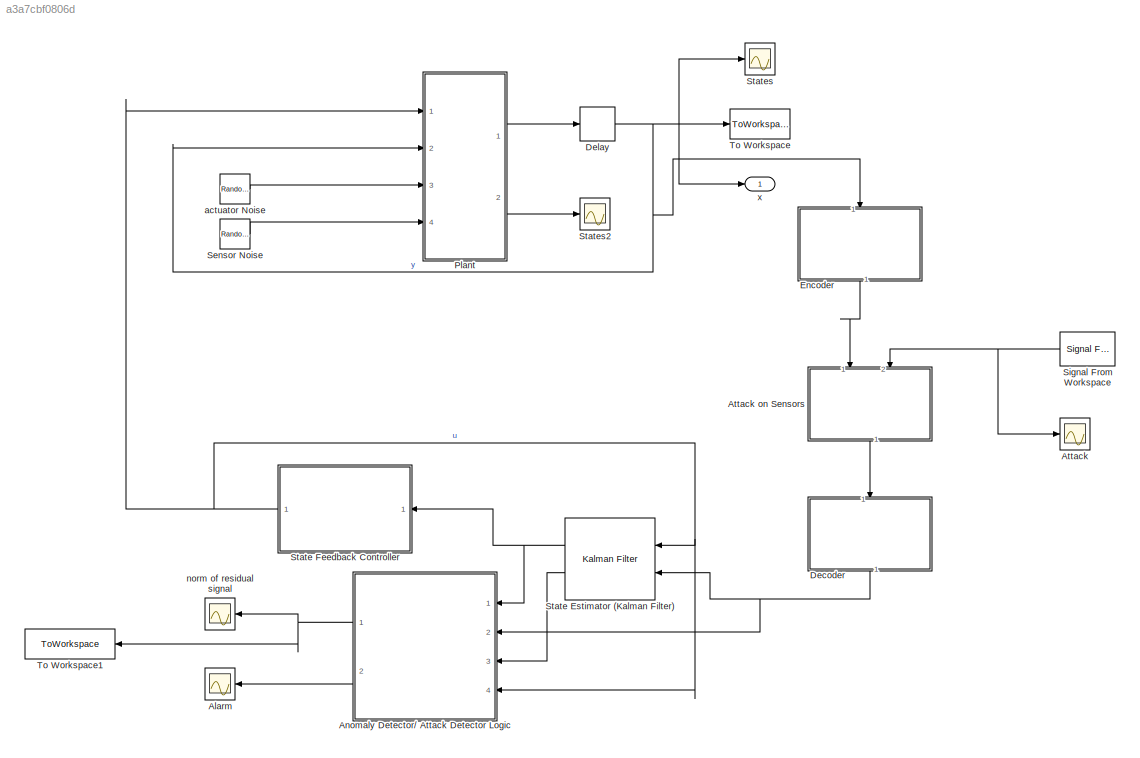
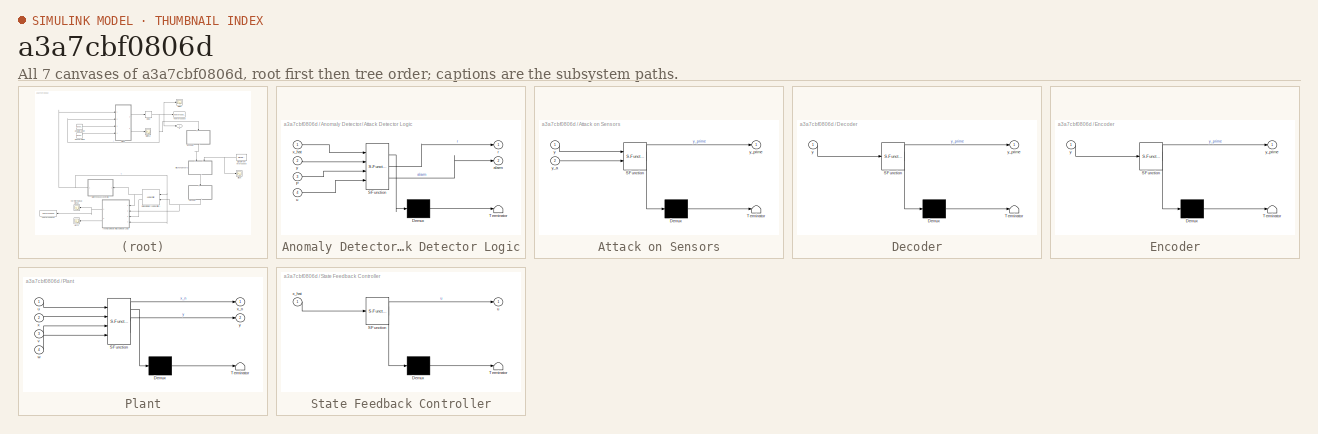
[diagram: thumbnail index - all 7 canvases of the model, root first then tree order]
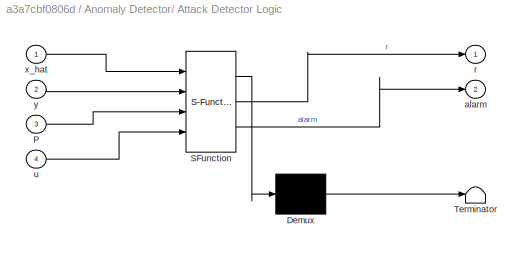
MODEL slx_a3a7cbf0806d
KIND model
CONFIG AbsTol = auto
CONFIG EnableMultiTasking = off
CONFIG FixedStep = 0.1
CONFIG MaxStep = auto
CONFIG MinStep = auto
CONFIG RelTol = 1e-3
CONFIG SampleTimeConstraint = Unconstrained
CONFIG SolverName = VariableStepAuto
CONFIG StartTime = 0.0
CONFIG StopTime = 100
BLOCK [Scope] Alarm
  Floating = off
  NameLocation = top
  NumInputPorts = 1
  Ports = [1]
  ScopeSpecificationString = Simulink.scopes.TimeScopeBlockCfg('CurrentConfiguration', extmgr.ConfigurationSet(extmgr.Configuration('Core','General UI',true),extmgr.Configuration('Core','Source UI',true),extmgr.Configuration('Sources','WiredSimulink',true,'DataLoggingVariableName','ScopeData4'),extmgr.Configuration('Visuals','Time Domain',true,'SerializedDisplays',{struct('MinYLimReal','-0.125','MaxYLimReal','1.125','YLabelRe...<+1472ch>
BLOCK [SubSystem] Anomaly Detector// Attack Detector Logic
  ErrorFcn = Stateflow.Translate.translate
  NameLocation = top
  PermitHierarchicalResolution = ExplicitOnly
  Ports = [4, 2]
  RequestExecContextInheritance = off
  SFBlockType = MATLAB Function
  TreatAsAtomicUnit = on
BLOCK [Demux] Anomaly Detector// Attack Detector Logic/ Demux 
  Outputs = 1
  Ports = [1, 1]
BLOCK [S-Function] Anomaly Detector// Attack Detector Logic/ SFunction 
  EnableBusSupport = on
  FunctionName = sf_sfun
  PortCounts = [4 3]
  Ports = [4, 3]
  SFcnIsStateOwnerBlock = off
  SFunctionDeploymentMode = off
  Tag = Stateflow S-Function 4
BLOCK [Terminator] Anomaly Detector// Attack Detector Logic/ Terminator 
BLOCK [Inport] Anomaly Detector// Attack Detector Logic/P
  Port = 3
BLOCK [Outport] Anomaly Detector// Attack Detector Logic/alarm
  Port = 2
BLOCK [Outport] Anomaly Detector// Attack Detector Logic/r
BLOCK [Inport] Anomaly Detector// Attack Detector Logic/u
  Port = 4
BLOCK [Inport] Anomaly Detector// Attack Detector Logic/x_hat
BLOCK [Inport] Anomaly Detector// Attack Detector Logic/y
  Port = 2
BLOCK [Scope] Attack
  Floating = off
  NumInputPorts = 1
  Ports = [1]
  ScopeSpecificationString = Simulink.scopes.TimeScopeBlockCfg('CurrentConfiguration', extmgr.ConfigurationSet(extmgr.Configuration('Core','General UI',true),extmgr.Configuration('Core','Source UI',true),extmgr.Configuration('Sources','WiredSimulink',true,'DataLoggingVariableName','ScopeData1'),extmgr.Configuration('Visuals','Time Domain',true,'SerializedDisplays',{struct('MinYLimReal','-4.34935','MaxYLimReal','0.62615','YLab...<+1514ch>
BLOCK [SubSystem] Attack on Sensors
  ErrorFcn = Stateflow.Translate.translate
  NameLocation = left
  PermitHierarchicalResolution = ExplicitOnly
  Ports = [2, 1]
  RequestExecContextInheritance = off
  SFBlockType = MATLAB Function
  TreatAsAtomicUnit = on
BLOCK [Demux] Attack on Sensors/ Demux 
  Outputs = 1
  Ports = [1, 1]
BLOCK [S-Function] Attack on Sensors/ SFunction 
  EnableBusSupport = on
  FunctionName = sf_sfun
  PortCounts = [2 2]
  Ports = [2, 2]
  SFcnIsStateOwnerBlock = off
  SFunctionDeploymentMode = off
  Tag = Stateflow S-Function 2
BLOCK [Terminator] Attack on Sensors/ Terminator 
BLOCK [Inport] Attack on Sensors/y
BLOCK [Inport] Attack on Sensors/y_a
  Port = 2
BLOCK [Outport] Attack on Sensors/y_prime
  VectorParamsAs1DForOutWhenUnconnected = off
BLOCK [SubSystem] Decoder
  ErrorFcn = Stateflow.Translate.translate
  NameLocation = left
  PermitHierarchicalResolution = ExplicitOnly
  Ports = [1, 1]
  RequestExecContextInheritance = off
  SFBlockType = MATLAB Function
  TreatAsAtomicUnit = on
BLOCK [Demux] Decoder/ Demux 
  Outputs = 1
  Ports = [1, 1]
BLOCK [S-Function] Decoder/ SFunction 
  EnableBusSupport = on
  FunctionName = sf_sfun
  PortCounts = [1 2]
  Ports = [1, 2]
  SFcnIsStateOwnerBlock = off
  SFunctionDeploymentMode = off
  Tag = Stateflow S-Function 6
BLOCK [Terminator] Decoder/ Terminator 
BLOCK [Inport] Decoder/y
BLOCK [Outport] Decoder/y_prime
  VectorParamsAs1DForOutWhenUnconnected = off
BLOCK [Delay] Delay
  DelayLength = 1
  InitialCondition = [0;0]
  InputPortMap = u0
  Ports = [1, 1]
  SampleTime = sample_time
BLOCK [SubSystem] Encoder
  ErrorFcn = Stateflow.Translate.translate
  NameLocation = left
  PermitHierarchicalResolution = ExplicitOnly
  Ports = [1, 1]
  RequestExecContextInheritance = off
  SFBlockType = MATLAB Function
  TreatAsAtomicUnit = on
BLOCK [Demux] Encoder/ Demux 
  Outputs = 1
  Ports = [1, 1]
BLOCK [S-Function] Encoder/ SFunction 
  EnableBusSupport = on
  FunctionName = sf_sfun
  PortCounts = [1 2]
  Ports = [1, 2]
  SFcnIsStateOwnerBlock = off
  SFunctionDeploymentMode = off
  Tag = Stateflow S-Function 5
BLOCK [Terminator] Encoder/ Terminator 
BLOCK [Inport] Encoder/y
BLOCK [Outport] Encoder/y_prime
  VectorParamsAs1DForOutWhenUnconnected = off
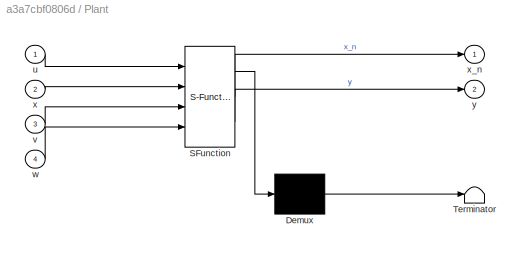
BLOCK [SubSystem] Plant
  ErrorFcn = Stateflow.Translate.translate
  PermitHierarchicalResolution = ExplicitOnly
  Ports = [4, 2]
  RequestExecContextInheritance = off
  SFBlockType = MATLAB Function
  TreatAsAtomicUnit = on
BLOCK [Demux] Plant/ Demux 
  Outputs = 1
  Ports = [1, 1]
BLOCK [S-Function] Plant/ SFunction 
  EnableBusSupport = on
  FunctionName = sf_sfun
  PortCounts = [4 3]
  Ports = [4, 3]
  SFcnIsStateOwnerBlock = off
  SFunctionDeploymentMode = off
  Tag = Stateflow S-Function 1
BLOCK [Terminator] Plant/ Terminator 
BLOCK [Inport] Plant/u
BLOCK [Inport] Plant/v
  Port = 3
BLOCK [Inport] Plant/w
  Port = 4
BLOCK [Inport] Plant/x
  Port = 2
BLOCK [Outport] Plant/x_n
  VectorParamsAs1DForOutWhenUnconnected = off
BLOCK [Outport] Plant/y
  Port = 2
  VectorParamsAs1DForOutWhenUnconnected = off
BLOCK [RandomNumber] Sensor Noise
  Mean = [0 0]
  SampleTime = sample_time
  Seed = [randi(100) randi(100)]
  Variance = [0.01 0.01]
BLOCK [Reference] Signal From Workspace  REF=dspsrcs4/Signal From
Workspace
  NameLocation = top
  Ports = [0, 1]
  SourceBlock = dspsrcs4/Signal From\nWorkspace
  SourceProductBaseCode = DS
  SourceType = Signal From Workspace
BLOCK [Reference] State Estimator (Kalman Filter)  REF=ctrlSharedLib/Kalman Filter
  NameLocation = top
  Ports = [2, 2]
  SourceBlock = ctrlSharedLib/Kalman Filter
  SourceProductBaseCode = CT,ID
  SourceType = ctrlKalmanFilter
BLOCK [SubSystem] State Feedback Controller
  ErrorFcn = Stateflow.Translate.translate
  NameLocation = top
  PermitHierarchicalResolution = ExplicitOnly
  Ports = [1, 1]
  RequestExecContextInheritance = off
  SFBlockType = MATLAB Function
  TreatAsAtomicUnit = on
BLOCK [Demux] State Feedback Controller/ Demux 
  Outputs = 1
  Ports = [1, 1]
BLOCK [S-Function] State Feedback Controller/ SFunction 
  EnableBusSupport = on
  FunctionName = sf_sfun
  PortCounts = [1 2]
  Ports = [1, 2]
  SFcnIsStateOwnerBlock = off
  SFunctionDeploymentMode = off
  Tag = Stateflow S-Function 3
BLOCK [Terminator] State Feedback Controller/ Terminator 
BLOCK [Outport] State Feedback Controller/u
  VectorParamsAs1DForOutWhenUnconnected = off
BLOCK [Inport] State Feedback Controller/x_hat
BLOCK [Scope] States
  Floating = off
  NumInputPorts = 1
  Ports = [1]
  ScopeSpecificationString = Simulink.scopes.TimeScopeBlockCfg('CurrentConfiguration', extmgr.ConfigurationSet(extmgr.Configuration('Core','General UI',true),extmgr.Configuration('Core','Source UI',true),extmgr.Configuration('Sources','WiredSimulink',true,'DataLoggingVariableName','ScopeData2'),extmgr.Configuration('Visuals','Time Domain',true,'SerializedDisplays',{struct('MinYLimReal','-150.00472','MaxYLimReal','1348.36067',...<+1490ch>
BLOCK [Scope] States2
  Floating = off
  NumInputPorts = 1
  Ports = [1]
  ScopeSpecificationString = Simulink.scopes.TimeScopeBlockCfg('CurrentConfiguration', extmgr.ConfigurationSet(extmgr.Configuration('Core','General UI',true),extmgr.Configuration('Core','Source UI',true),extmgr.Configuration('Sources','WiredSimulink',true,'DataLoggingVariableName','ScopeData3'),extmgr.Configuration('Visuals','Time Domain',true,'SerializedDisplays',{struct('MinYLimReal','-0.3215','MaxYLimReal','0.32106','YLabe...<+1482ch>
BLOCK [ToWorkspace] To Workspace
  FixptAsFi = on
  MaxDataPoints = inf
  Ports = [1]
  SampleTime = sample_time
  SaveFormat = Timeseries
  VariableName = x_k1
BLOCK [ToWorkspace] To Workspace1
  FixptAsFi = on
  MaxDataPoints = inf
  NameLocation = top
  Ports = [1]
  SampleTime = sample_time
  SaveFormat = Timeseries
  VariableName = residual_2
BLOCK [RandomNumber] actuator Noise
  Mean = [0 0]
  SampleTime = sample_time
  Seed = [randi(100) randi(100)]
  Variance = [0.0001 0.0001]
BLOCK [Scope] norm of residual signal
  Floating = off
  NameLocation = top
  NumInputPorts = 1
  Ports = [1]
  ScopeSpecificationString = Simulink.scopes.TimeScopeBlockCfg('CurrentConfiguration', extmgr.ConfigurationSet(extmgr.Configuration('Core','General UI',true),extmgr.Configuration('Core','Source UI',true),extmgr.Configuration('Sources','WiredSimulink',true),extmgr.Configuration('Visuals','Time Domain',true,'SerializedDisplays',{struct('MinYLimReal','-2.93192','MaxYLimReal','30.3605','YLabelReal','','MinYLimMag','0.00000','MaxY...<+1438ch>
BLOCK [Outport] x 
  VectorParamsAs1DForOutWhenUnconnected = off
NET Anomaly Detector// Attack Detector Logic:1 -> To Workspace1:1, norm of residual signal:1
LINE Anomaly Detector// Attack Detector Logic:2 -> Alarm:1
LINE Attack on Sensors:1 -> Decoder:1
NET Decoder:1 -> Anomaly Detector// Attack Detector Logic:2, State Estimator (Kalman Filter):2
NET Delay:1 -> Encoder:1, Plant:2, States:1, To Workspace:1, x :1
LINE Encoder:1 -> Attack on Sensors:1
LINE Plant:1 -> Delay:1
LINE Plant:2 -> States2:1
LINE Sensor Noise:1 -> Plant:4
NET Signal From Workspace:1 -> Attack on Sensors:2, Attack:1
NET State Estimator (Kalman Filter):1 -> Anomaly Detector// Attack Detector Logic:1, State Feedback Controller:1
LINE State Estimator (Kalman Filter):2 -> Anomaly Detector// Attack Detector Logic:3
NET State Feedback Controller:1 -> Anomaly Detector// Attack Detector Logic:4, Plant:1, State Estimator (Kalman Filter):1
LINE actuator Noise:1 -> Plant:3
note: NET lines group one-source signal fan-out (src -> all destinations, sorted); 1:1 wires keep LINE
CHART Plant states=1 transitions=1
  STATE_LABEL 'eML_blk_kernel()'
  STATE_LABEL 'SCRIPT:\nfunction [x_n, y] = fcn(u, x, v, w)\n\n%A=[1.0000    0.0001   -0.0010;0.5747    1.0000   -0.0003;0.0162    0.0000    1.0000];\n%B = [0.1   -0.2; -0.0536    0.0332;0.1955   -0.5294];\n\nA = [0.8 0; 0.5 1];\nB = [1;0.5];\nC = [2 0.5;0 1];\nD = 0;\n\nx_n = A*x + B*u + v;\ny = C*x + D*u + w;\n'
CHART Attack on Sensors states=1 transitions=1
  STATE_LABEL 'eML_blk_kernel()'
  STATE_LABEL "SCRIPT:\nfunction y_prime = fcn(y, y_a)\n% this function should contain the attacker action on the sensor\n% measurements\nsigma1 = [2 -0.5;-0.5 1];\nsigma2 = [1 -1;2 0];\n\ny_prime = y_a';\n% y_prime = y;\n\nend\n\n   \n\n"
CHART State Feedback Controller states=1 transitions=1
  STATE_LABEL 'eML_blk_kernel()'
  STATE_LABEL 'SCRIPT:\nfunction u  = Controller(x_hat)\n%two tanks model \n\n\n\nK = [-1  -4];\n\nu = K*x_hat;\n\n\n\n'
CHART Anomaly Detector// Attack Detector Logic states=1 transitions=1
  STATE_LABEL 'eML_blk_kernel()'
  STATE_LABEL 'SCRIPT:\nfunction [r, alarm] = Detector(x_hat,y, P, u)\n% this function should contain the detection strategy\n\n% for the chi square detector "P" should be the name of detection signal and\n% "tau" the name of threshold\nA = [0.8 0; 0.5 1];\nB = [1;0.5];\nC = [2 0.5;0 1];\nthreshold = chi2inv(0.99,2);\nsigma = ((C)*(P)*(C\')) + 0.01;\nr = norm(y - C*(A*x_hat + B*u),2);\nz = (r\') * (inv(sigma)) * r;\nif z<=thre...<+101ch>'
CHART Encoder states=1 transitions=1
  STATE_LABEL 'eML_blk_kernel()'
  STATE_LABEL "SCRIPT:\nfunction y_prime = fcn(y)\n% this function should contain the attacker action on the sensor\n% measurements\nsigma1 = [2 -0.5;-0.5 1];\nsigma2 = [1 -1;2 0];\n% y_prime = y'*sigma1;\ny_prime = y;\nend\n\n   \n\n"
CHART Decoder states=1 transitions=1
  STATE_LABEL 'eML_blk_kernel()'
  STATE_LABEL 'SCRIPT:\nfunction y_prime = fcn(y)\n% this function should contain the attacker action on the sensor\n% measurements\nsigma1 = [2 -0.5;-0.5 1];\nsigma2 = [1 -1;2 0];\n% y_prime = y*inv(sigma1);\ny_prime = y;\nend\n\n   \n\n'
CHART  states=0 transitions=0
CHART  states=0 transitions=0
CHART  states=0 transitions=0
CHART  states=0 transitions=0
CHART  states=0 transitions=0
CHART  states=0 transitions=0
